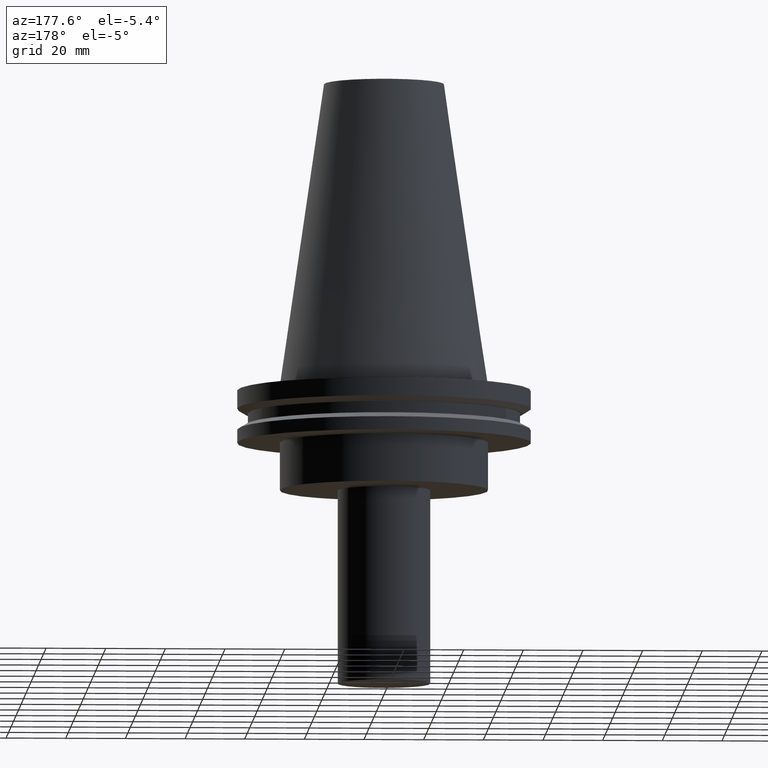
[diagram: clean part render]
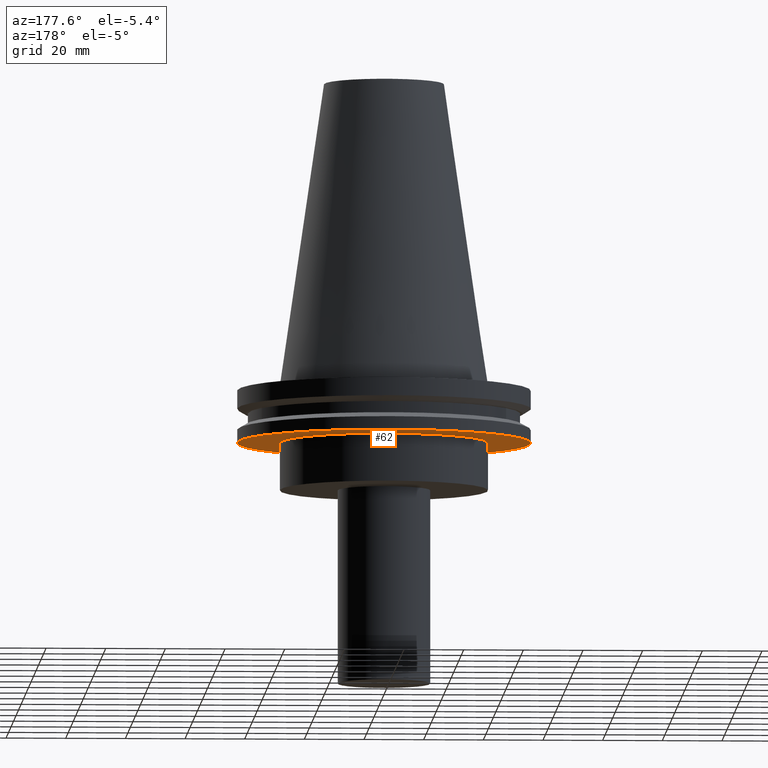
[diagram: same view with one face highlighted and labeled with its STEP entity id]
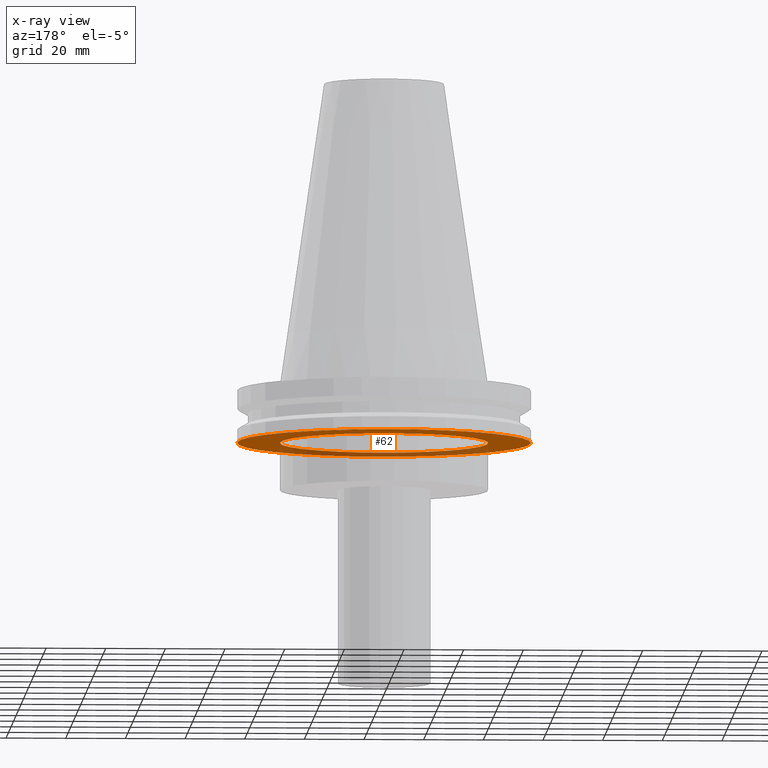
[diagram: x-ray of the same camera — body ghosted, the highlighted face saturated]
A machine part, auxiliary view. The second image highlights one B-rep face of the part: STEP entity #62.
The next image is the same camera in x-ray: the body ghosted, the highlighted face saturated — about 31% of this face is hidden behind the body in this view.
In plain terms, the highlighted planar face has unit normal (0, -0, 1).
Its self-contained STEP definition (entity closure, byte-faithful):
#17 = DIRECTION ( 'NONE',  ( 1.000000000000000000, 0.000000000000000000, 0.000000000000000000 ) ) ;
#20 = CIRCLE ( 'NONE', #385, 34.92499999999999716 ) ;
#28 = DIRECTION ( 'NONE',  ( -0.000000000000000000, -0.000000000000000000, 1.000000000000000000 ) ) ;
#62 = ADVANCED_FACE ( 'NONE', ( #167, #323 ), #289, .F. ) ;
#85 = EDGE_CURVE ( 'NONE', #378, #378, #366, .T. ) ;
#111 = DIRECTION ( 'NONE',  ( 1.000000000000000000, 0.000000000000000000, 0.000000000000000000 ) ) ;
#122 = EDGE_LOOP ( 'NONE', ( #134 ) ) ;
#134 = ORIENTED_EDGE ( 'NONE', *, *, #85, .F. ) ;
#155 = CARTESIAN_POINT ( 'NONE',  ( 34.92499999999999716, 0.000000000000000000, -19.04999999999999716 ) ) ;
#167 = FACE_OUTER_BOUND ( 'NONE', #122, .T. ) ;
#173 = AXIS2_PLACEMENT_3D ( 'NONE', #259, #383, #17 ) ;
#174 = DIRECTION ( 'NONE',  ( -0.000000000000000000, -0.000000000000000000, 1.000000000000000000 ) ) ;
#185 = CARTESIAN_POINT ( 'NONE',  ( 49.21499999999998920, 0.000000000000000000, -19.04999999999999716 ) ) ;
#197 = EDGE_CURVE ( 'NONE', #306, #306, #20, .T. ) ;
#206 = DIRECTION ( 'NONE',  ( 1.000000000000000000, 0.000000000000000000, 0.000000000000000000 ) ) ;
#232 = AXIS2_PLACEMENT_3D ( 'NONE', #381, #174, #111 ) ;
#259 = CARTESIAN_POINT ( 'NONE',  ( 0.000000000000000000, 49.21499999999998920, -19.04999999999999716 ) ) ;
#289 = PLANE ( 'NONE',  #173 ) ;
#300 = ORIENTED_EDGE ( 'NONE', *, *, #197, .T. ) ;
#306 = VERTEX_POINT ( 'NONE', #155 ) ;
#323 = FACE_BOUND ( 'NONE', #330, .T. ) ;
#330 = EDGE_LOOP ( 'NONE', ( #300 ) ) ;
#366 = CIRCLE ( 'NONE', #232, 49.21499999999998920 ) ;
#378 = VERTEX_POINT ( 'NONE', #185 ) ;
#381 = CARTESIAN_POINT ( 'NONE',  ( 0.000000000000000000, 0.000000000000000000, -19.04999999999999716 ) ) ;
#383 = DIRECTION ( 'NONE',  ( 0.000000000000000000, -0.000000000000000000, 1.000000000000000000 ) ) ;
#385 = AXIS2_PLACEMENT_3D ( 'NONE', #390, #28, #206 ) ;
#390 = CARTESIAN_POINT ( 'NONE',  ( 0.000000000000000000, 0.000000000000000000, -19.04999999999999716 ) ) ;